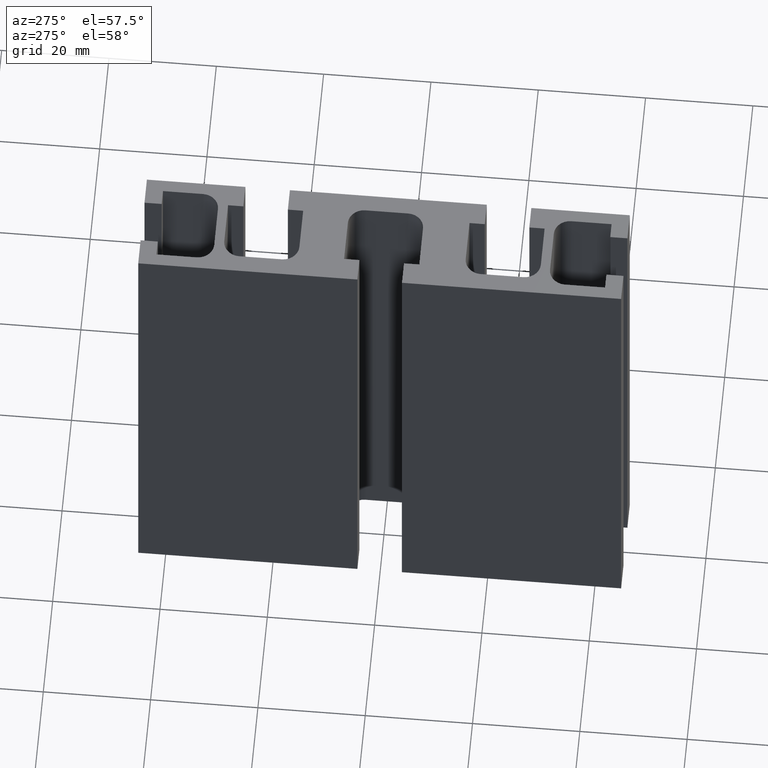
[diagram: clean part render]
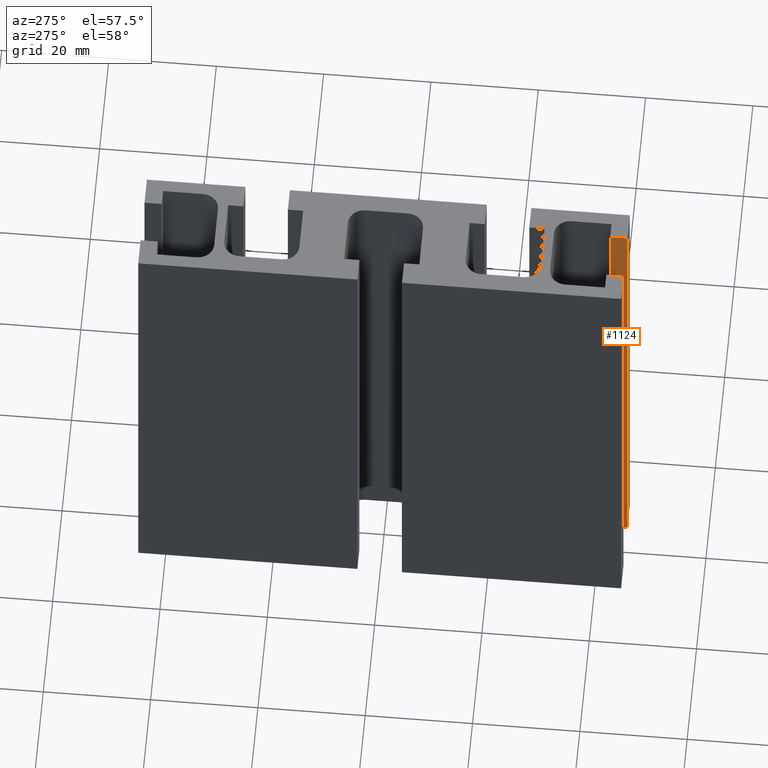
[diagram: same view with one face highlighted and labeled with its STEP entity id]
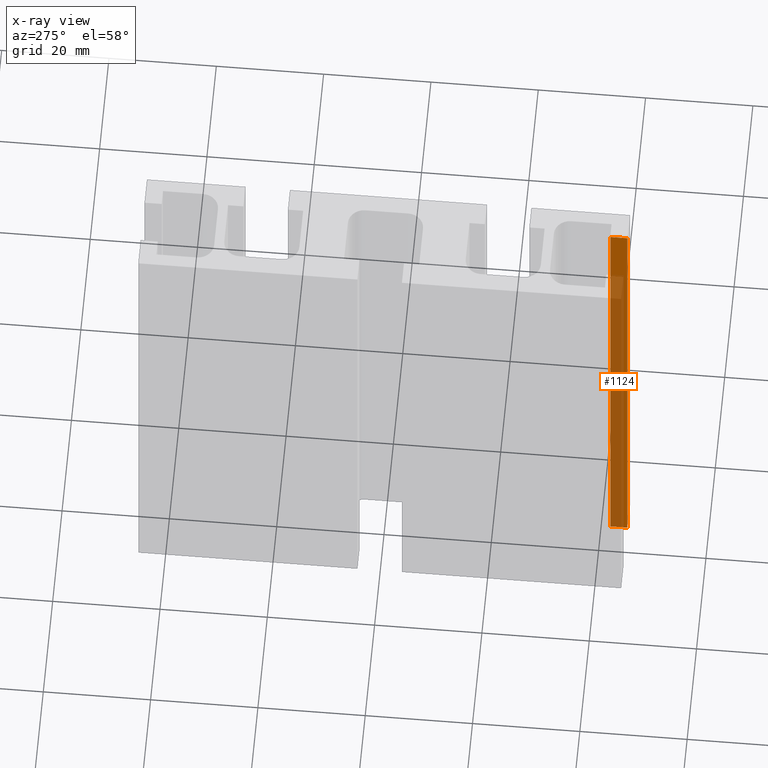
[diagram: x-ray of the same camera — body ghosted, the highlighted face saturated]
A machine part, auxiliary view. The second image highlights one B-rep face of the part: STEP entity #1124.
The next image is the same camera in x-ray: the body ghosted, the highlighted face saturated — about 66% of this face is hidden behind the body in this view.
In plain terms, the highlighted planar face has unit normal (-1, 0, 0).
Its self-contained STEP definition (entity closure, byte-faithful):
#88=FACE_OUTER_BOUND('',#144,.T.);
#144=EDGE_LOOP('',(#883,#884,#885,#886));
#270=LINE('',#1772,#412);
#271=LINE('',#1775,#413);
#272=LINE('',#1777,#414);
#273=LINE('',#1778,#415);
#412=VECTOR('',#1448,100.);
#413=VECTOR('',#1451,3.20000000000007);
#414=VECTOR('',#1452,3.20000000000007);
#415=VECTOR('',#1453,100.);
#527=VERTEX_POINT('',#1768);
#528=VERTEX_POINT('',#1770);
#529=VERTEX_POINT('',#1774);
#530=VERTEX_POINT('',#1776);
#678=EDGE_CURVE('',#527,#528,#270,.T.);
#679=EDGE_CURVE('',#527,#529,#271,.T.);
#680=EDGE_CURVE('',#530,#528,#272,.T.);
#681=EDGE_CURVE('',#529,#530,#273,.T.);
#883=ORIENTED_EDGE('',*,*,#679,.F.);
#884=ORIENTED_EDGE('',*,*,#678,.T.);
#885=ORIENTED_EDGE('',*,*,#680,.F.);
#886=ORIENTED_EDGE('',*,*,#681,.F.);
#1070=PLANE('',#1198);
#1124=ADVANCED_FACE('',(#88),#1070,.T.);
#1198=AXIS2_PLACEMENT_3D('',#1773,#1449,#1450);
#1448=DIRECTION('',(0.,0.,1.));
#1449=DIRECTION('center_axis',(-1.,2.08166817117212E-15,0.));
#1450=DIRECTION('ref_axis',(-2.04281036531029E-15,-1.,0.));
#1451=DIRECTION('',(2.08166817117212E-15,1.,0.));
#1452=DIRECTION('',(-2.08166817117212E-15,-1.,0.));
#1453=DIRECTION('',(0.,0.,1.));
#1768=CARTESIAN_POINT('',(4.14999999999984,-44.9999999999999,0.));
#1770=CARTESIAN_POINT('',(4.14999999999984,-44.9999999999999,100.));
#1772=CARTESIAN_POINT('',(4.14999999999984,-44.9999999999999,0.));
#1773=CARTESIAN_POINT('Origin',(4.14999999999985,-41.7999999999998,0.));
#1774=CARTESIAN_POINT('',(4.14999999999985,-41.7999999999998,0.));
#1775=CARTESIAN_POINT('',(4.14999999999984,-44.9999999999999,0.));
#1776=CARTESIAN_POINT('',(4.14999999999985,-41.7999999999998,100.));
#1777=CARTESIAN_POINT('',(4.14999999999984,-44.9999999999999,100.));
#1778=CARTESIAN_POINT('',(4.14999999999985,-41.7999999999998,0.));